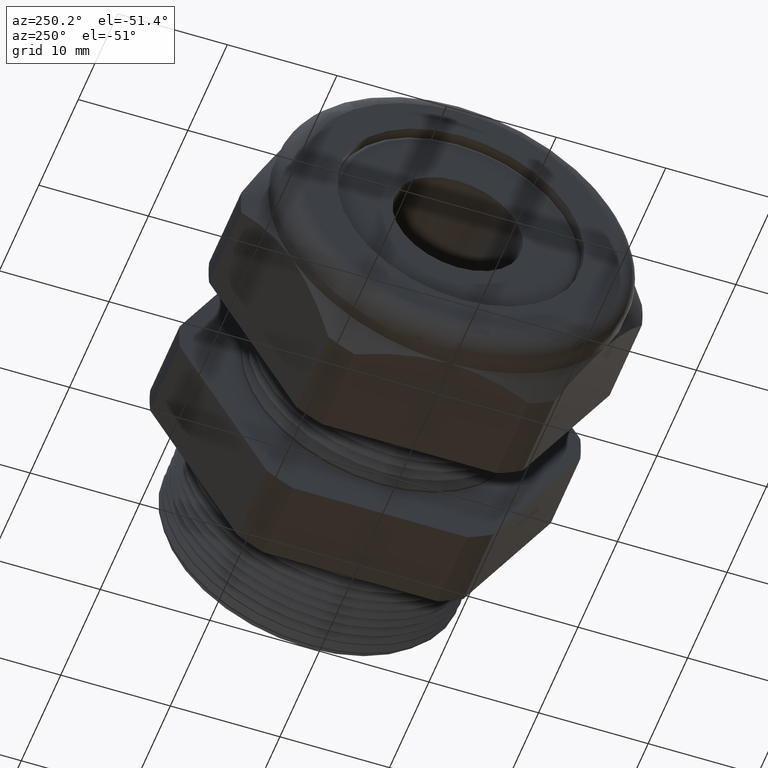
[diagram: clean part render]
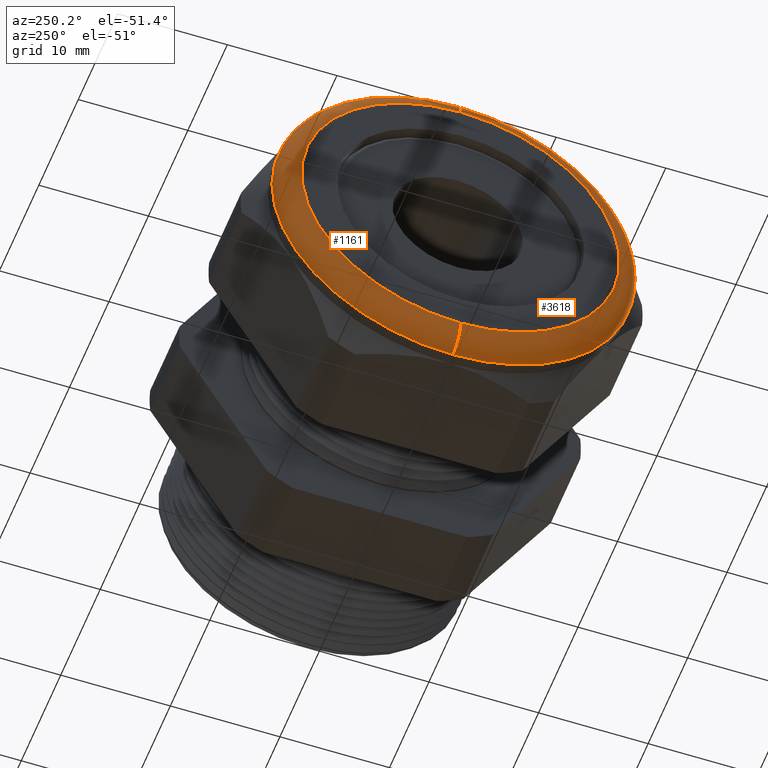
[diagram: same view with one multi-face feature highlighted, each face labeled with its STEP entity id]
A machine part, auxiliary view. The highlighted faces form ONE feature: a constant-radius fillet chain: 2 tangent blend faces with common blend radius 2 mm. The faces share edges in the B-rep.
Their STEP definitions:
[1] entity #1161 (Torus):
#1130 = EDGE_CURVE ( 'NONE', #1166, #1171, #2270, .T. ) ;
#1138 = EDGE_CURVE ( 'NONE', #1171, #1170, #2320, .T. ) ;
#1139 = ORIENTED_EDGE ( 'NONE', *, *, #1138, .F. ) ;
#1150 = ORIENTED_EDGE ( 'NONE', *, *, #1151, .T. ) ;
#1151 = EDGE_CURVE ( 'NONE', #1166, #1156, #2287, .T. ) ;
#1156 = VERTEX_POINT ( 'NONE', #2348 ) ;
#1157 = EDGE_LOOP ( 'NONE', ( #1164, #1150, #1159, #1139 ) ) ;
#1159 = ORIENTED_EDGE ( 'NONE', *, *, #1167, .F. ) ;
#1161 = ADVANCED_FACE ( 'NONE', ( #2342 ), #2341, .T. ) ;
#1164 = ORIENTED_EDGE ( 'NONE', *, *, #1130, .F. ) ;
#1166 = VERTEX_POINT ( 'NONE', #2329 ) ;
#1167 = EDGE_CURVE ( 'NONE', #1170, #1156, #2328, .T. ) ;
#1170 = VERTEX_POINT ( 'NONE', #2321 ) ;
#1171 = VERTEX_POINT ( 'NONE', #2385 ) ;
#2266 = DIRECTION ( 'NONE',  ( 0.0000000000000000000, 0.0000000000000000000, 1.000000000000000000 ) ) ;
#2267 = DIRECTION ( 'NONE',  ( 1.000000000000000000, 0.0000000000000000000, 0.0000000000000000000 ) ) ;
#2268 = CARTESIAN_POINT ( 'NONE',  ( -1.331259842519684900, 0.0000000000000000000, 0.0000000000000000000 ) ) ;
#2269 = AXIS2_PLACEMENT_3D ( 'NONE', #2268, #2267, #2266 ) ;
#2270 = CIRCLE ( 'NONE', #2269, 0.6500000000000000200 ) ;
#2287 = CIRCLE ( 'NONE', #2353, 0.07874015748031496000 ) ;
#2316 = DIRECTION ( 'NONE',  ( 0.0000000000000000000, 0.0000000000000000000, -1.000000000000000000 ) ) ;
#2317 = DIRECTION ( 'NONE',  ( 0.0000000000000000000, -1.000000000000000000, 0.0000000000000000000 ) ) ;
#2318 = CARTESIAN_POINT ( 'NONE',  ( -1.331259842519684900, 0.0000000000000000000, 0.5712598425196850900 ) ) ;
#2319 = AXIS2_PLACEMENT_3D ( 'NONE', #2318, #2317, #2316 ) ;
#2320 = CIRCLE ( 'NONE', #2319, 0.07874015748031496000 ) ;
#2321 = CARTESIAN_POINT ( 'NONE',  ( -1.409999999999999900, 0.0000000000000000000, 0.5712598425196850900 ) ) ;
#2324 = DIRECTION ( 'NONE',  ( 0.0000000000000000000, 0.0000000000000000000, 1.000000000000000000 ) ) ;
#2325 = DIRECTION ( 'NONE',  ( -1.000000000000000000, 0.0000000000000000000, 0.0000000000000000000 ) ) ;
#2326 = CARTESIAN_POINT ( 'NONE',  ( -1.409999999999999900, 0.0000000000000000000, 0.0000000000000000000 ) ) ;
#2327 = AXIS2_PLACEMENT_3D ( 'NONE', #2326, #2325, #2324 ) ;
#2328 = CIRCLE ( 'NONE', #2327, 0.5712598425196850900 ) ;
#2329 = CARTESIAN_POINT ( 'NONE',  ( -1.331259842519684900, 0.0000000000000000000, -0.6500000000000000200 ) ) ;
#2336 = DIRECTION ( 'NONE',  ( 0.0000000000000000000, 0.0000000000000000000, 1.000000000000000000 ) ) ;
#2337 = DIRECTION ( 'NONE',  ( -1.000000000000000000, 0.0000000000000000000, 0.0000000000000000000 ) ) ;
#2338 = CARTESIAN_POINT ( 'NONE',  ( -1.331259842519684900, 0.0000000000000000000, 0.0000000000000000000 ) ) ;
#2339 = AXIS2_PLACEMENT_3D ( 'NONE', #2338, #2337, #2336 ) ;
#2341 = TOROIDAL_SURFACE ( 'NONE', #2339, 0.5712598425196850900, 0.07874015748031496000 ) ;
#2342 = FACE_OUTER_BOUND ( 'NONE', #1157, .T. ) ;
#2348 = CARTESIAN_POINT ( 'NONE',  ( -1.409999999999999900, 7.478059785344665900E-017, -0.5712598425196850900 ) ) ;
#2350 = DIRECTION ( 'NONE',  ( 0.0000000000000000000, -1.224646799147353500E-016, 1.000000000000000000 ) ) ;
#2351 = DIRECTION ( 'NONE',  ( 0.0000000000000000000, 1.000000000000000000, 1.224646799147353200E-016 ) ) ;
#2352 = CARTESIAN_POINT ( 'NONE',  ( -1.331259842519684900, 6.995915376231533800E-017, -0.5712598425196850900 ) ) ;
#2353 = AXIS2_PLACEMENT_3D ( 'NONE', #2352, #2351, #2350 ) ;
#2385 = CARTESIAN_POINT ( 'NONE',  ( -1.331259842519684900, 7.960204194457796700E-017, 0.6500000000000000200 ) ) ;
[2] entity #3618 (Torus):
#157 = DIRECTION ( 'NONE',  ( 0.0000000000000000000, 0.0000000000000000000, 1.000000000000000000 ) ) ;
#158 = DIRECTION ( 'NONE',  ( -1.000000000000000000, 0.0000000000000000000, 0.0000000000000000000 ) ) ;
#159 = AXIS2_PLACEMENT_3D ( 'NONE', #161, #158, #157 ) ;
#160 = TOROIDAL_SURFACE ( 'NONE', #159, 0.5712598425196850900, 0.07874015748031496000 ) ;
#161 = CARTESIAN_POINT ( 'NONE',  ( -1.331259842519684900, 0.0000000000000000000, 0.0000000000000000000 ) ) ;
#162 = FACE_OUTER_BOUND ( 'NONE', #3615, .T. ) ;
#1138 = EDGE_CURVE ( 'NONE', #1171, #1170, #2320, .T. ) ;
#1151 = EDGE_CURVE ( 'NONE', #1166, #1156, #2287, .T. ) ;
#1156 = VERTEX_POINT ( 'NONE', #2348 ) ;
#1166 = VERTEX_POINT ( 'NONE', #2329 ) ;
#1170 = VERTEX_POINT ( 'NONE', #2321 ) ;
#1171 = VERTEX_POINT ( 'NONE', #2385 ) ;
#2054 = EDGE_CURVE ( 'NONE', #1156, #1170, #3323, .T. ) ;
#2287 = CIRCLE ( 'NONE', #2353, 0.07874015748031496000 ) ;
#2316 = DIRECTION ( 'NONE',  ( 0.0000000000000000000, 0.0000000000000000000, -1.000000000000000000 ) ) ;
#2317 = DIRECTION ( 'NONE',  ( 0.0000000000000000000, -1.000000000000000000, 0.0000000000000000000 ) ) ;
#2318 = CARTESIAN_POINT ( 'NONE',  ( -1.331259842519684900, 0.0000000000000000000, 0.5712598425196850900 ) ) ;
#2319 = AXIS2_PLACEMENT_3D ( 'NONE', #2318, #2317, #2316 ) ;
#2320 = CIRCLE ( 'NONE', #2319, 0.07874015748031496000 ) ;
#2321 = CARTESIAN_POINT ( 'NONE',  ( -1.409999999999999900, 0.0000000000000000000, 0.5712598425196850900 ) ) ;
#2329 = CARTESIAN_POINT ( 'NONE',  ( -1.331259842519684900, 0.0000000000000000000, -0.6500000000000000200 ) ) ;
#2348 = CARTESIAN_POINT ( 'NONE',  ( -1.409999999999999900, 7.478059785344665900E-017, -0.5712598425196850900 ) ) ;
#2350 = DIRECTION ( 'NONE',  ( 0.0000000000000000000, -1.224646799147353500E-016, 1.000000000000000000 ) ) ;
#2351 = DIRECTION ( 'NONE',  ( 0.0000000000000000000, 1.000000000000000000, 1.224646799147353200E-016 ) ) ;
#2352 = CARTESIAN_POINT ( 'NONE',  ( -1.331259842519684900, 6.995915376231533800E-017, -0.5712598425196850900 ) ) ;
#2353 = AXIS2_PLACEMENT_3D ( 'NONE', #2352, #2351, #2350 ) ;
#2385 = CARTESIAN_POINT ( 'NONE',  ( -1.331259842519684900, 7.960204194457796700E-017, 0.6500000000000000200 ) ) ;
#2701 = EDGE_CURVE ( 'NONE', #1171, #1166, #3351, .T. ) ;
#3316 = DIRECTION ( 'NONE',  ( 0.0000000000000000000, 0.0000000000000000000, 1.000000000000000000 ) ) ;
#3317 = DIRECTION ( 'NONE',  ( -1.000000000000000000, 0.0000000000000000000, 0.0000000000000000000 ) ) ;
#3318 = CARTESIAN_POINT ( 'NONE',  ( -1.409999999999999900, 0.0000000000000000000, 0.0000000000000000000 ) ) ;
#3319 = AXIS2_PLACEMENT_3D ( 'NONE', #3318, #3317, #3316 ) ;
#3323 = CIRCLE ( 'NONE', #3319, 0.5712598425196850900 ) ;
#3347 = DIRECTION ( 'NONE',  ( 0.0000000000000000000, 0.0000000000000000000, 1.000000000000000000 ) ) ;
#3348 = DIRECTION ( 'NONE',  ( 1.000000000000000000, 0.0000000000000000000, 0.0000000000000000000 ) ) ;
#3349 = CARTESIAN_POINT ( 'NONE',  ( -1.331259842519684900, 0.0000000000000000000, 0.0000000000000000000 ) ) ;
#3350 = AXIS2_PLACEMENT_3D ( 'NONE', #3349, #3348, #3347 ) ;
#3351 = CIRCLE ( 'NONE', #3350, 0.6500000000000000200 ) ;
#3599 = ORIENTED_EDGE ( 'NONE', *, *, #1138, .T. ) ;
#3601 = ORIENTED_EDGE ( 'NONE', *, *, #2701, .F. ) ;
#3602 = ORIENTED_EDGE ( 'NONE', *, *, #1151, .F. ) ;
#3615 = EDGE_LOOP ( 'NONE', ( #3602, #3601, #3599, #3647 ) ) ;
#3618 = ADVANCED_FACE ( 'NONE', ( #162 ), #160, .T. ) ;
#3647 = ORIENTED_EDGE ( 'NONE', *, *, #2054, .F. ) ;